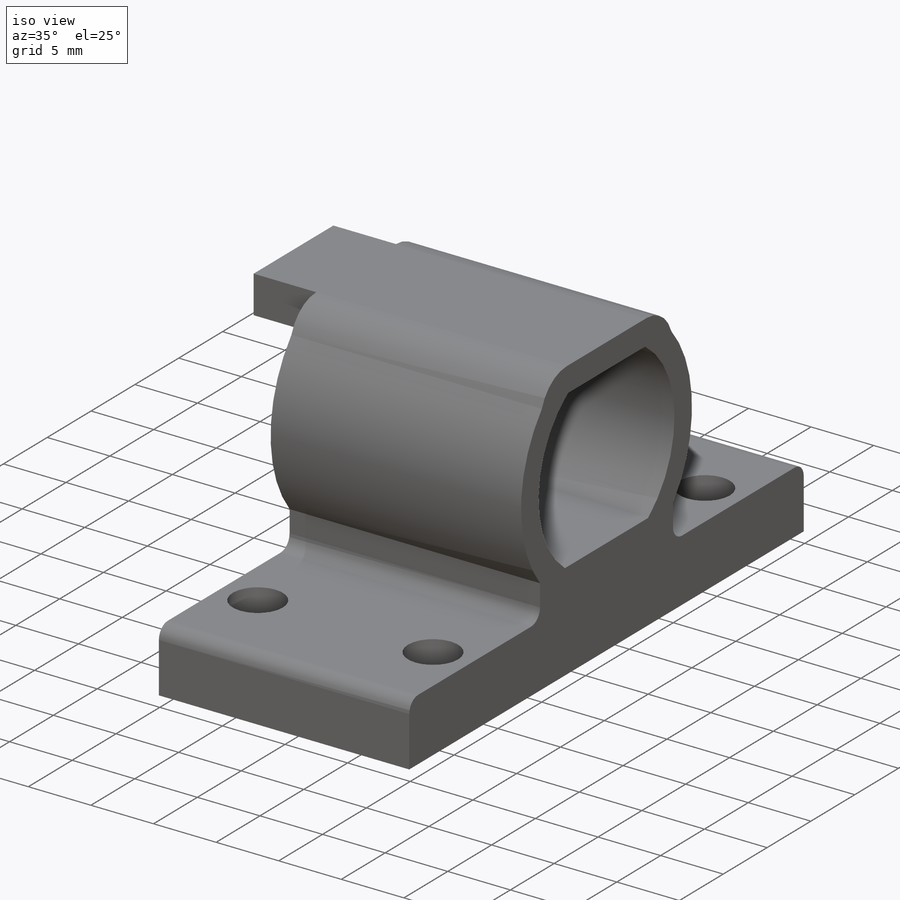
[diagram: iso view]
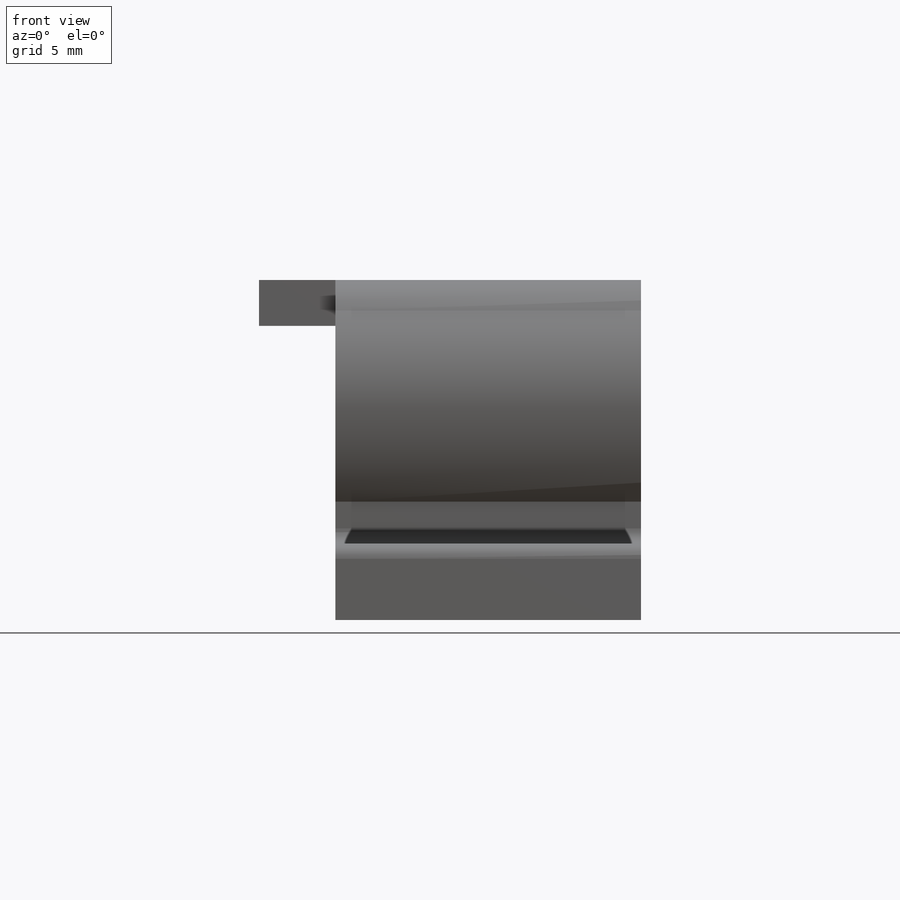
[diagram: front view]
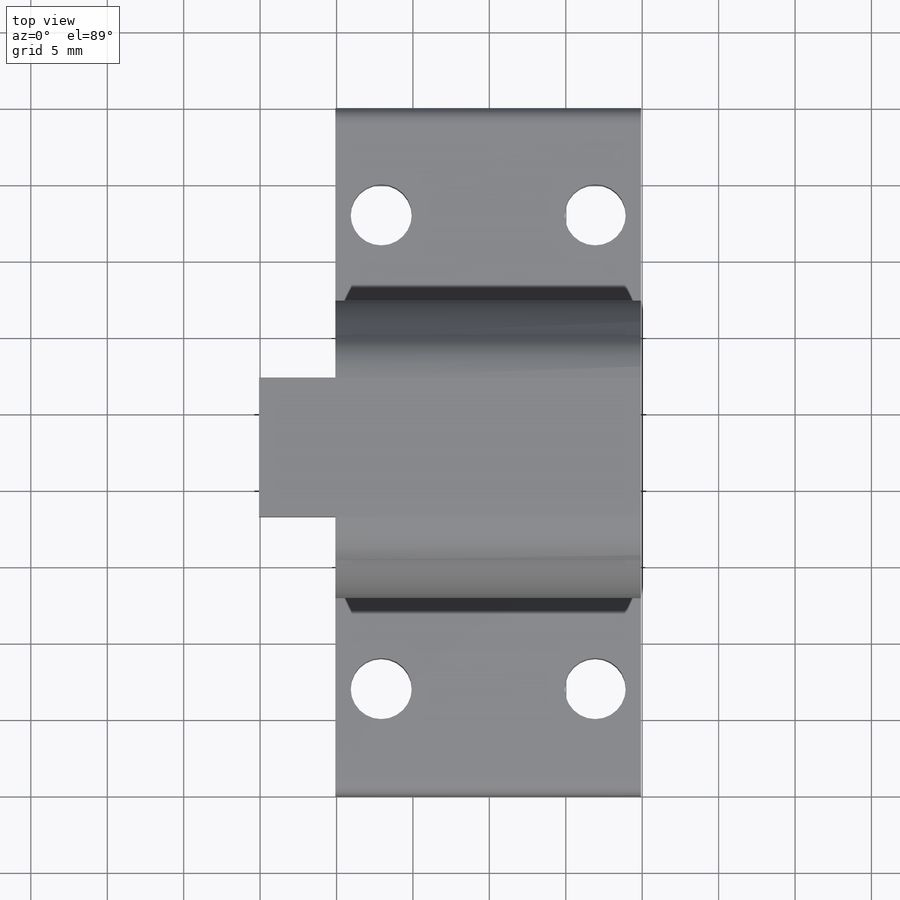
[diagram: top view]
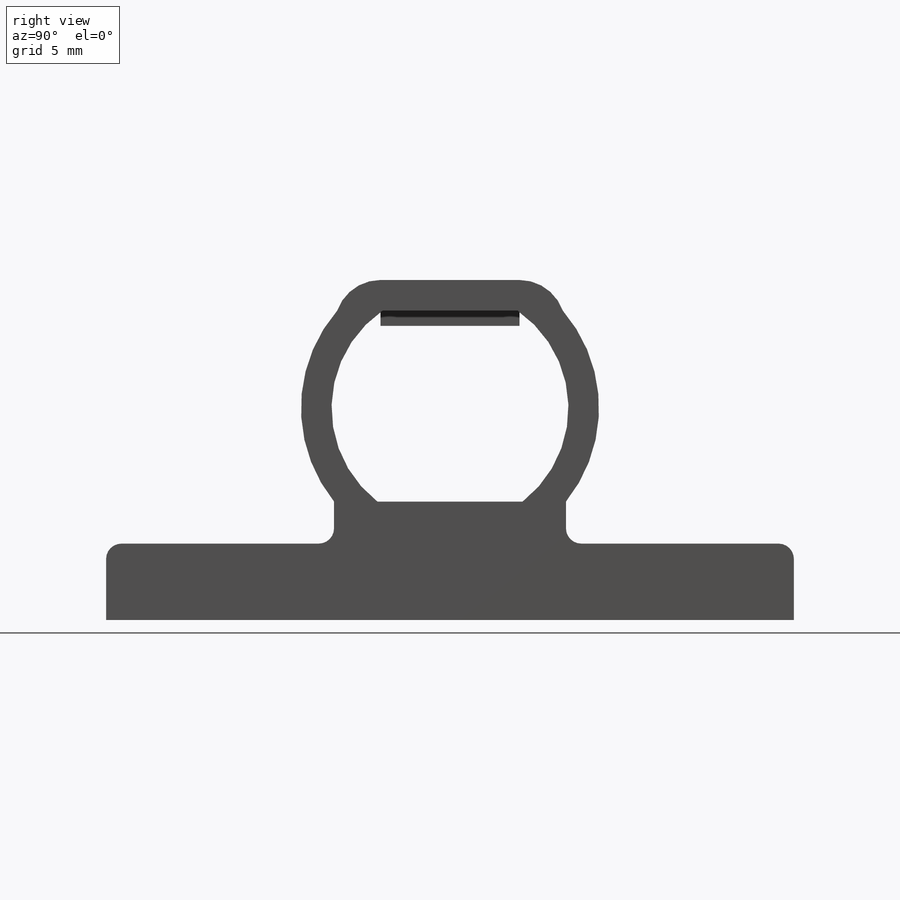
[diagram: right view]
SOLIDWORKS PART (.sldprt)
format: sldprt  version: not decoded by parser v0  size: 373,248 bytes
history: native  units: mm
features: sketch x11, extrude x8, fillet x6, cut_extrude x3, material x1 (+13 scaffold rows collapsed)
feature tree (42):
  scaffold x13  (default folders/planes/origin — collapsed)
  material  "Material <not specified>"
  sketch  "Sketch1"  dims[D1=4.75mm D2=20.0mm]
  extrude  "Boss-Extrude1"  Depth=25mm
  sketch  "Sketch2"  dims[c1.D1=7.75mm c1.D4=9.75mm c1.D5=7.6mm c1.D2=9.5mm c1.D3=12.5mm c2.D4=10.0mm c2.D5=4.75mm]
  extrude  "Boss-Extrude3"  [1 undecoded]
  sketch  "Sketch5"  dims[D1=2.0mm D2=2.0mm]
  cut_extrude  "Cut-Extrude1"  [1 undecoded]
  sketch  "Sketch9"  dims[D1=12.5mm]
  cut_extrude  "Cut-Extrude3"  [1 undecoded]
  sketch  "Sketch10"  dims[D1=2.0mm]
  extrude  "Boss-Extrude4"  [1 undecoded]
  fillet  "Fillet1"  Radius=3mm
  fillet  "Fillet2"  Radius=3mm
  sketch  "Sketch11"  dims[D1=13.0mm]
  extrude  "Boss-Extrude5"  Depth=10mm
  sketch  "Sketch12"
  extrude  "Boss-Extrude6"  Depth=10mm
  fillet  "Fillet5"  Radius=1mm
  fillet  "Fillet6"  Radius=1mm
  sketch  "Sketch13"  dims[c1.D1=4.0mm c1.D2=3.2mm c1.D3=3.2mm c1.D6=3.2mm c1.D7=3.2mm c1.D8=3.2mm c1.D9=3.2mm c1.D10=3.2mm c2.D2=3.0mm c2.D3=6.0mm c2.D6=6.0mm c2.D7=6.0mm c2.D8=3.0mm c2.D9=3.0mm c2.D10=3.0mm c2.D4=2.0 c2.D5=2.0]
  cut_extrude  "Cut-Extrude4"  [1 undecoded]
  fillet  "Fillet7"  Radius=1mm
  fillet  "Fillet8"  Radius=1mm
  sketch  "Sketch14"  dims[D1=7.0mm D2=1.315mm]
  extrude  "Boss-Extrude7"  Depth=5mm
  sketch  "Sketch15"  dims[D1=5.0mm D2=5.0mm]
  extrude  "Boss-Extrude8"  Depth=3mm
  sketch  "Sketch16"
  extrude  "Boss-Extrude9"  Depth=3mm
decode coverage: 21 of 28 modeling features carry decoded parameters
note: 5 parameter values undecoded
summary: no parameter record found for 5 features
note: suppression state not decoded; provenance and decode notes live in map.json
